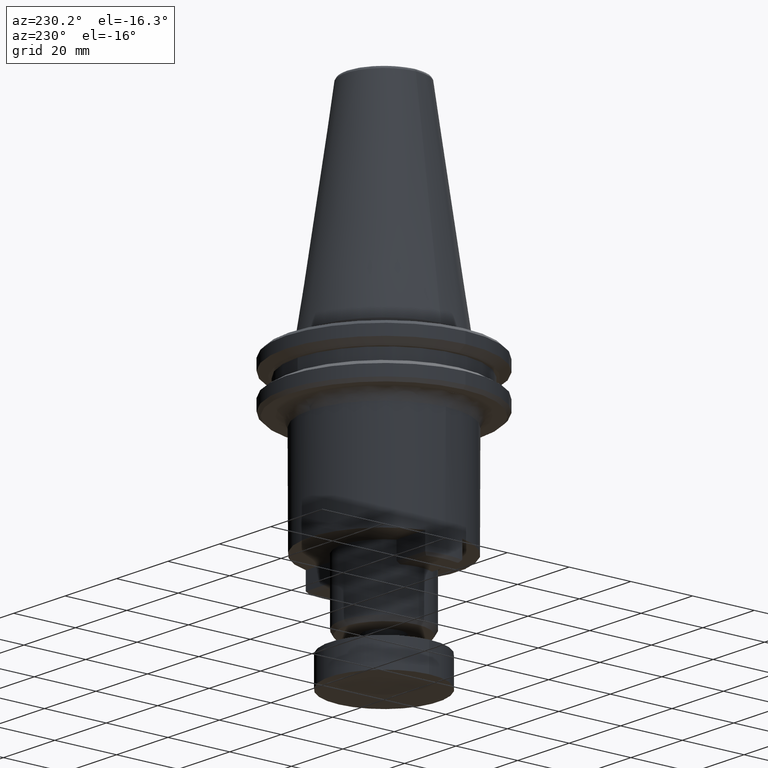
[diagram: clean part render]
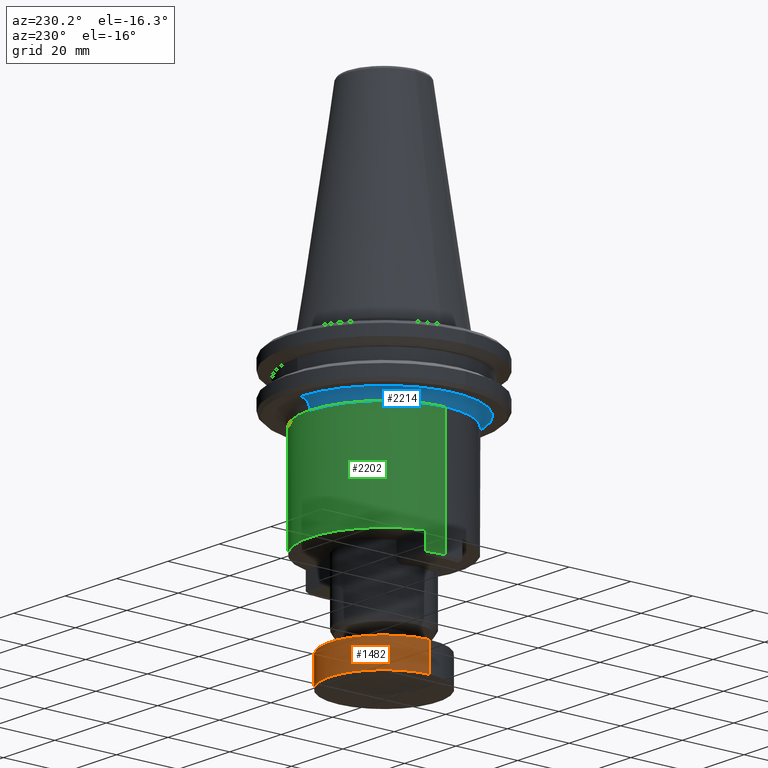
[diagram: same view with three faces highlighted in distinct colors, each labeled with its STEP entity id]
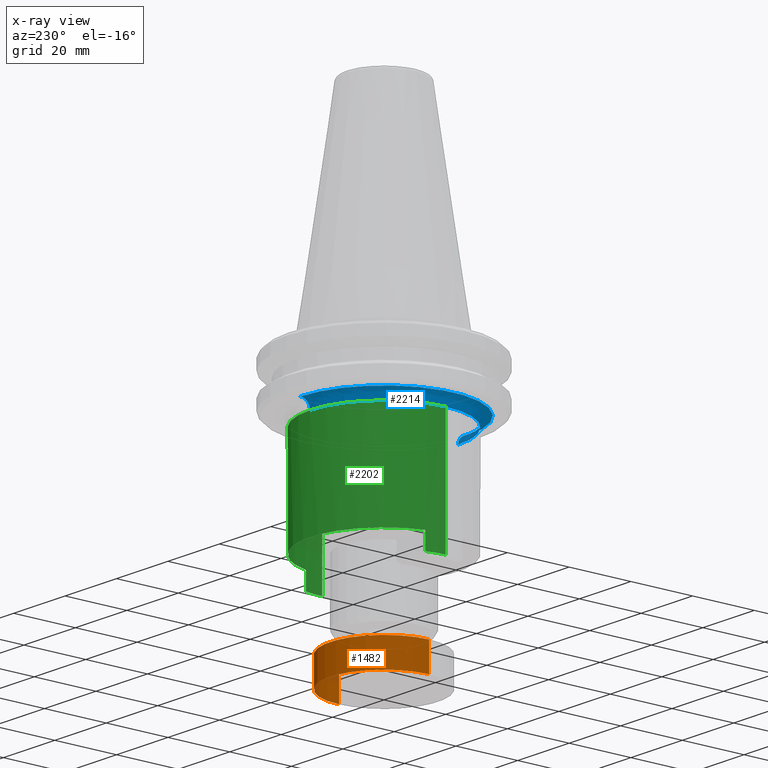
[diagram: x-ray of the same camera — body ghosted, the three highlighted faces saturated]
A machine part, auxiliary view with three faces highlighted in distinct colors.
The next image is the same camera in x-ray (body ghosted, the three faces saturated) — at least one of them is partly hidden behind the body in this view.
Their STEP definitions:

[orange] entity #1482 — the highlighted cylindrical surface (partial cylindrical patch) has radius 17.5 mm, axis along (0, -0, 1).
#55 = AXIS2_PLACEMENT_3D ( 'NONE', #540, #748, #1552 ) ;
#60 = LINE ( 'NONE', #1221, #72 ) ;
#72 = VECTOR ( 'NONE', #2378, 1000.000000000000000 ) ;
#213 = CARTESIAN_POINT ( 'NONE',  ( -17.50000000000000000, 2.143131898507868200E-015, -80.99999999999998600 ) ) ;
#236 = DIRECTION ( 'NONE',  ( -0.0000000000000000000, -0.0000000000000000000, 1.000000000000000000 ) ) ;
#502 = CARTESIAN_POINT ( 'NONE',  ( 17.50000000000000000, 0.0000000000000000000, -80.99999999999998600 ) ) ;
#506 = VERTEX_POINT ( 'NONE', #213 ) ;
#540 = CARTESIAN_POINT ( 'NONE',  ( 0.0000000000000000000, 0.0000000000000000000, -92.00000000000000000 ) ) ;
#543 = EDGE_LOOP ( 'NONE', ( #647, #1954, #1404, #798 ) ) ;
#553 = EDGE_CURVE ( 'NONE', #2429, #800, #60, .T. ) ;
#626 = DIRECTION ( 'NONE',  ( 0.0000000000000000000, -0.0000000000000000000, 1.000000000000000000 ) ) ;
#647 = ORIENTED_EDGE ( 'NONE', *, *, #1059, .T. ) ;
#748 = DIRECTION ( 'NONE',  ( 0.0000000000000000000, -0.0000000000000000000, 1.000000000000000000 ) ) ;
#798 = ORIENTED_EDGE ( 'NONE', *, *, #553, .F. ) ;
#800 = VERTEX_POINT ( 'NONE', #502 ) ;
#834 = CARTESIAN_POINT ( 'NONE',  ( -17.50000000000000000, 2.143131898507868200E-015, -92.00000000000000000 ) ) ;
#965 = LINE ( 'NONE', #834, #1226 ) ;
#1008 = EDGE_CURVE ( 'NONE', #1054, #506, #965, .T. ) ;
#1054 = VERTEX_POINT ( 'NONE', #1237 ) ;
#1059 = EDGE_CURVE ( 'NONE', #2429, #1054, #1786, .T. ) ;
#1087 = AXIS2_PLACEMENT_3D ( 'NONE', #1452, #236, #1655 ) ;
#1123 = DIRECTION ( 'NONE',  ( -0.0000000000000000000, -0.0000000000000000000, 1.000000000000000000 ) ) ;
#1171 = AXIS2_PLACEMENT_3D ( 'NONE', #2228, #1123, #2382 ) ;
#1194 = CARTESIAN_POINT ( 'NONE',  ( 17.50000000000000000, 0.0000000000000000000, -90.00000000000000000 ) ) ;
#1221 = CARTESIAN_POINT ( 'NONE',  ( 17.50000000000000000, 0.0000000000000000000, -92.00000000000000000 ) ) ;
#1226 = VECTOR ( 'NONE', #626, 1000.000000000000000 ) ;
#1237 = CARTESIAN_POINT ( 'NONE',  ( -17.50000000000000000, 2.143131898507868200E-015, -90.00000000000000000 ) ) ;
#1322 = EDGE_CURVE ( 'NONE', #800, #506, #1393, .T. ) ;
#1393 = CIRCLE ( 'NONE', #1171, 17.50000000000000000 ) ;
#1404 = ORIENTED_EDGE ( 'NONE', *, *, #1322, .F. ) ;
#1452 = CARTESIAN_POINT ( 'NONE',  ( 0.0000000000000000000, 0.0000000000000000000, -90.00000000000000000 ) ) ;
#1482 = ADVANCED_FACE ( 'NONE', ( #1524 ), #1535, .T. ) ;
#1524 = FACE_OUTER_BOUND ( 'NONE', #543, .T. ) ;
#1535 = CYLINDRICAL_SURFACE ( 'NONE', #55, 17.50000000000000000 ) ;
#1552 = DIRECTION ( 'NONE',  ( 1.000000000000000000, 0.0000000000000000000, 0.0000000000000000000 ) ) ;
#1655 = DIRECTION ( 'NONE',  ( 1.000000000000000000, 0.0000000000000000000, 0.0000000000000000000 ) ) ;
#1786 = CIRCLE ( 'NONE', #1087, 17.50000000000000000 ) ;
#1954 = ORIENTED_EDGE ( 'NONE', *, *, #1008, .T. ) ;
#2228 = CARTESIAN_POINT ( 'NONE',  ( 0.0000000000000000000, 0.0000000000000000000, -80.99999999999998600 ) ) ;
#2378 = DIRECTION ( 'NONE',  ( 0.0000000000000000000, -0.0000000000000000000, 1.000000000000000000 ) ) ;
#2382 = DIRECTION ( 'NONE',  ( 1.000000000000000000, 0.0000000000000000000, 0.0000000000000000000 ) ) ;
#2429 = VERTEX_POINT ( 'NONE', #1194 ) ;

[blue] entity #2214 — the highlighted face is a freeform B-spline surface patch.
#13 = CARTESIAN_POINT ( 'NONE',  ( 0.0000000000000000000, 25.47174097201115500, -19.54151932953587700 ) ) ;
#29 = CARTESIAN_POINT ( 'NONE',  ( -2.988353811773083100E-015, -24.40176068604997900, -20.63818861464176300 ) ) ;
#37 = CARTESIAN_POINT ( 'NONE',  ( -3.316710141014327000E-015, -27.08299358903781200, -19.10000000006646600 ) ) ;
#41 = CARTESIAN_POINT ( 'NONE',  ( -2.973463182682304800E-015, -24.28016947214940300, -20.87359389177611700 ) ) ;
#46 = CARTESIAN_POINT ( 'NONE',  ( 0.0000000000000000000, 26.74504547859683300, -19.11366538526451500 ) ) ;
#65 = CARTESIAN_POINT ( 'NONE',  ( 0.0000000000000000000, 25.63667532669894200, -19.44847616323465900 ) ) ;
#68 = CARTESIAN_POINT ( 'NONE',  ( -3.033771743178761600E-015, -24.77261645747164200, -20.12326061206603000 ) ) ;
#74 = CARTESIAN_POINT ( 'NONE',  ( 1.160793696044889500E-021, 24.00197083846224900, -22.04263168587630500 ) ) ;
#77 = CARTESIAN_POINT ( 'NONE',  ( 1.210272777833079100E-021, 25.02506002497355200, -19.87103662062297000 ) ) ;
#83 = CARTESIAN_POINT ( 'NONE',  ( -48.09892836191969000, 24.04946418095985200, -21.59674186181025100 ) ) ;
#85 = CARTESIAN_POINT ( 'NONE',  ( -50.47748957326554400, 25.23874478663278300, -19.69770547463807000 ) ) ;
#88 = CARTESIAN_POINT ( 'NONE',  ( -48.34278131121003200, -24.17139065560501600, -21.14121355465885800 ) ) ;
#89 = CARTESIAN_POINT ( 'NONE',  ( -50.94348194402230200, -25.47174097201115100, -19.54151932953587700 ) ) ;
#97 = CARTESIAN_POINT ( 'NONE',  ( -2.980773832590649800E-015, -24.33985584685595100, -20.75177861678397300 ) ) ;
#100 = CARTESIAN_POINT ( 'NONE',  ( -3.157888726445433700E-015, -25.78610813799670300, -19.37312280497416200 ) ) ;
#108 = CARTESIAN_POINT ( 'NONE',  ( 1.189308352323298000E-021, 24.59157427169511900, -20.34665700395282800 ) ) ;
#109 = CARTESIAN_POINT ( 'NONE',  ( 1.293455458342606800E-021, 26.74504547859683300, -19.11366538526451500 ) ) ;
#111 = CARTESIAN_POINT ( 'NONE',  ( 0.0000000000000000000, 27.08299358903781200, -19.10000000006646600 ) ) ;
#114 = CIRCLE ( 'NONE', #1186, 24.00000000006866000 ) ;
#119 = CARTESIAN_POINT ( 'NONE',  ( -54.12267612127281800, 27.06133806063641600, -19.10000264357085300 ) ) ;
#165 = CARTESIAN_POINT ( 'NONE',  ( -24.00000000088071800, 2.939152317825839400E-015, -22.09999999293517800 ) ) ;
#198 = DIRECTION ( 'NONE',  ( 1.000000000000000000, 0.0000000000000000000, 0.0000000000000000000 ) ) ;
#210 = CARTESIAN_POINT ( 'NONE',  ( -3.041082922797647100E-015, -24.83232655256166400, -20.05811846355374000 ) ) ;
#214 = CARTESIAN_POINT ( 'NONE',  ( -3.127930069000175900E-015, -24.00000000006865300, -22.09999999293517800 ) ) ;
#225 = CARTESIAN_POINT ( 'NONE',  ( -2.949360735611140900E-015, -24.08335805609095500, -21.43842917605208600 ) ) ;
#232 = CARTESIAN_POINT ( 'NONE',  ( -3.315999417530180600E-015, -27.07719009137090200, -19.10000000006658600 ) ) ;
#240 = B_SPLINE_CURVE_WITH_KNOTS ( 'NONE', 3,
 ( #214, #443, #545, #337, #431, #225, #325, #421, #438, #41, #2348, #29, #2356, #631, #900, #2338, #2416, #2130, #210, #1635, #1298, #1254, #1405, #1632, #1625, #1494, #1357, #1382, #1280, #1229, #1343, #1616, #1429, #1446, #768, #1537, #1606, #1050, #232, #37 ),
 .UNSPECIFIED., .F., .F.,
 ( 4, 1, 1, 1, 1, 1, 1, 1, 1, 1, 1, 1, 1, 1, 1, 1, 1, 1, 1, 1, 1, 1, 1, 1, 1, 1, 1, 1, 1, 1, 1, 1, 1, 1, 1, 1, 1, 4 ),
 ( 0.0000000000000000000, 0.03374438955145329200, 0.06693056908431628500, 0.09944994850239068100, 0.1311992728670136300, 0.1620816899155294300, 0.1920075900602428700, 0.2208952059969902000, 0.2486709717472370400, 0.2752696522297909400, 0.3006342636236450900, 0.3247158114665391100, 0.3474728775550126000, 0.3688710884380348400, 0.3888824979720096300, 0.4074849144752980500, 0.4248084793631145000, 0.4420409775586069400, 0.4594390162865942300, 0.4769954785646872100, 0.4947028440482579800, 0.5125531996005000500, 0.5305382523576290800, 0.5486493452965089900, 0.5668774752843069900, 0.5852133135606930600, 0.6036472285734011400, 0.6221693110579125100, 0.6407694012223912300, 0.6594371178703631900, 0.7205688351961613300, 0.7765847958806458800, 0.8277640313836427400, 0.8778450782506306300, 0.9013710902939567900, 0.9249266016609246600, 0.9315126077460219600, 0.9359040413169756900 ),
 .UNSPECIFIED. ) ;
#262 = CARTESIAN_POINT ( 'NONE',  ( -49.66465310512332100, 24.83232655256166800, -20.05811846355374000 ) ) ;
#267 = DIRECTION ( 'NONE',  ( -0.0000000000000000000, 0.0000000000000000000, -1.000000000000000000 ) ) ;
#269 = CARTESIAN_POINT ( 'NONE',  ( -48.00394167692448400, -24.00197083846224200, -22.04263168587630500 ) ) ;
#271 = CARTESIAN_POINT ( 'NONE',  ( -50.05012004994709000, -25.02506002497354500, -19.87103662062297000 ) ) ;
#275 = CARTESIAN_POINT ( 'NONE',  ( -2.945211096132729900E-015, -24.04946418095985200, -21.59674186181025100 ) ) ;
#278 = CARTESIAN_POINT ( 'NONE',  ( -3.090856022351770500E-015, -25.23874478663277500, -19.69770547463807000 ) ) ;
#285 = CARTESIAN_POINT ( 'NONE',  ( 1.171516166023421100E-021, 24.22368156330327300, -21.00349263600511300 ) ) ;
#288 = CARTESIAN_POINT ( 'NONE',  ( 1.235820361969528600E-021, 25.55331269512977600, -19.49381769590019800 ) ) ;
#294 = CARTESIAN_POINT ( 'NONE',  ( -8.120552841273109800E-010, 6.421997349185742000E-015, -22.09999999293517800 ) ) ;
#298 = CARTESIAN_POINT ( 'NONE',  ( -48.80352137209994400, 24.40176068604997900, -20.63818861464176300 ) ) ;
#300 = CARTESIAN_POINT ( 'NONE',  ( -51.99848998872984400, 25.99924499436493300, -19.28291303339351600 ) ) ;
#305 = CARTESIAN_POINT ( 'NONE',  ( -49.18314854339022400, -24.59157427169511200, -20.34665700395282800 ) ) ;
#307 = CARTESIAN_POINT ( 'NONE',  ( -53.49009095719363700, -26.74504547859681800, -19.11366538526451500 ) ) ;
#313 = CARTESIAN_POINT ( 'NONE',  ( -3.314059412412420000E-015, -27.06133806063641600, -19.10000264357085000 ) ) ;
#325 = CARTESIAN_POINT ( 'NONE',  ( -2.954373207760629100E-015, -24.12428799730321300, -21.28636679768183600 ) ) ;
#337 = CARTESIAN_POINT ( 'NONE',  ( -2.942051444267424600E-015, -24.02367316287272200, -21.76052119568978000 ) ) ;
#343 = EDGE_CURVE ( 'NONE', #2002, #713, #240, .T. ) ;
#421 = CARTESIAN_POINT ( 'NONE',  ( -2.960141619732693000E-015, -24.17139065560502000, -21.14121355465885400 ) ) ;
#431 = CARTESIAN_POINT ( 'NONE',  ( -2.945209933042140300E-015, -24.04946418095985200, -21.59674186181025100 ) ) ;
#438 = CARTESIAN_POINT ( 'NONE',  ( -2.966545409006410500E-015, -24.22368156330327300, -21.00349263600511300 ) ) ;
#442 = CARTESIAN_POINT ( 'NONE',  ( 0.0000000000000000000, 24.33985584685595100, -20.75177861678397300 ) ) ;
#443 = CARTESIAN_POINT ( 'NONE',  ( -2.939393676055090800E-015, -24.00197083846224900, -22.04263168587630500 ) ) ;
#448 = CARTESIAN_POINT ( 'NONE',  ( -49.30683499531006200, -24.65341749765503100, -20.26544561018402000 ) ) ;
#456 = CARTESIAN_POINT ( 'NONE',  ( 1.160698381505987900E-021, 24.00000000006866300, -22.09999999293517800 ) ) ;
#457 = CARTESIAN_POINT ( 'NONE',  ( -3.041084123749365300E-015, -24.83232655256166400, -20.05811846355374000 ) ) ;
#461 = CARTESIAN_POINT ( 'NONE',  ( 1.160982748406989200E-021, 24.00587991317339100, -21.92884407507331100 ) ) ;
#462 = CARTESIAN_POINT ( 'NONE',  ( 0.0000000000000000000, 25.02506002497355200, -19.87103662062297000 ) ) ;
#465 = CARTESIAN_POINT ( 'NONE',  ( 1.213608173617835400E-021, 25.09402669203353400, -19.81156037020356200 ) ) ;
#472 = CARTESIAN_POINT ( 'NONE',  ( -48.16671611218190200, 24.08335805609095800, -21.43842917605208600 ) ) ;
#473 = EDGE_CURVE ( 'NONE', #866, #1815, #114, .T. ) ;
#474 = CARTESIAN_POINT ( 'NONE',  ( -50.62873171797764400, 25.31436585898883300, -19.64357705878610000 ) ) ;
#480 = CARTESIAN_POINT ( 'NONE',  ( -48.44736312660653300, -24.22368156330326600, -21.00349263600511300 ) ) ;
#483 = CARTESIAN_POINT ( 'NONE',  ( -51.10662539025953800, -25.55331269512976900, -19.49381769590019800 ) ) ;
#490 = CARTESIAN_POINT ( 'NONE',  ( -2.988354991901588300E-015, -24.40176068604997900, -20.63818861464176300 ) ) ;
#493 = CARTESIAN_POINT ( 'NONE',  ( -3.183990473646418600E-015, -25.99924499436493300, -19.28291303339351600 ) ) ;
#505 = CARTESIAN_POINT ( 'NONE',  ( 1.192299241168239100E-021, 24.65341749765504200, -20.26544561018402000 ) ) ;
#508 = CARTESIAN_POINT ( 'NONE',  ( 1.301470007262514100E-021, 26.91076396079954900, -19.10264559005054600 ) ) ;
#521 = CARTESIAN_POINT ( 'NONE',  ( -54.15438018274178900, 27.07719009137090200, -19.10000000006659000 ) ) ;
#545 = CARTESIAN_POINT ( 'NONE',  ( -2.939872399638353600E-015, -24.00587991317339100, -21.92884407507331100 ) ) ;
#556 = CARTESIAN_POINT ( 'NONE',  ( 0.0000000000000000000, 25.09402669203353400, -19.81156037020356200 ) ) ;
#587 = EDGE_CURVE ( 'NONE', #1815, #1900, #2316, .T. ) ;
#594 = CARTESIAN_POINT ( 'NONE',  ( 0.0000000000000000000, 24.02367316287272200, -21.76052119568978000 ) ) ;
#631 = CARTESIAN_POINT ( 'NONE',  ( -3.003873582403825400E-015, -24.52848923048865300, -20.43572703025455100 ) ) ;
#653 = CARTESIAN_POINT ( 'NONE',  ( 0.0000000000000000000, 25.99924499436493300, -19.28291303339351600 ) ) ;
#662 = CARTESIAN_POINT ( 'NONE',  ( 1.195203548431429200E-021, 24.71347045837884700, -20.19164763141174400 ) ) ;
#670 = CARTESIAN_POINT ( 'NONE',  ( -48.00000000000010700, 24.00000000000006400, -22.09999999332666900 ) ) ;
#671 = CARTESIAN_POINT ( 'NONE',  ( 0.0000000000000000000, 24.83232655256166400, -20.05811846355374000 ) ) ;
#675 = CARTESIAN_POINT ( 'NONE',  ( -49.78834237624318600, 24.89417118812159700, -19.99444551538555400 ) ) ;
#680 = CARTESIAN_POINT ( 'NONE',  ( -48.01175982634676800, -24.00587991317338400, -21.92884407507331100 ) ) ;
#682 = CARTESIAN_POINT ( 'NONE',  ( -50.18805338406705400, -25.09402669203352700, -19.81156037020356200 ) ) ;
#688 = CARTESIAN_POINT ( 'NONE',  ( -2.949361900340921100E-015, -24.08335805609095500, -21.43842917605208600 ) ) ;
#690 = CARTESIAN_POINT ( 'NONE',  ( -3.100116936429883100E-015, -25.31436585898883300, -19.64357705878610000 ) ) ;
#693 = CARTESIAN_POINT ( 'NONE',  ( 1.174248058705595000E-021, 24.28016947214940300, -20.87359389177611700 ) ) ;
#694 = CARTESIAN_POINT ( 'NONE',  ( 0.0000000000000000000, 25.39206010465806400, -19.59147629997605100 ) ) ;
#698 = CARTESIAN_POINT ( 'NONE',  ( 1.239851981617034200E-021, 25.63667532669894200, -19.44847616323465900 ) ) ;
#706 = CARTESIAN_POINT ( 'NONE',  ( 0.0000000000000000000, 24.95842714795766100, -19.93204153412120400 ) ) ;
#710 = CARTESIAN_POINT ( 'NONE',  ( -48.92987580976359400, 24.46493790488180400, -20.53285800312222200 ) ) ;
#712 = CARTESIAN_POINT ( 'NONE',  ( -52.54570098585570300, 26.27285049292785900, -19.19750540220530200 ) ) ;
#713 = VERTEX_POINT ( 'NONE', #938 ) ;
#722 = CARTESIAN_POINT ( 'NONE',  ( -53.82152792159908500, -26.91076396079954200, -19.10264559005054300 ) ) ;
#724 = CARTESIAN_POINT ( 'NONE',  ( -3.316000727048960200E-015, -27.07719009137090200, -19.10000000006658600 ) ) ;
#757 = CARTESIAN_POINT ( 'NONE',  ( 0.0000000000000000000, 24.00587991317339100, -21.92884407507331100 ) ) ;
#768 = CARTESIAN_POINT ( 'NONE',  ( -3.275323433841399900E-015, -26.74504547859683300, -19.11366538526451500 ) ) ;
#804 = CARTESIAN_POINT ( 'NONE',  ( 0.0000000000000000000, 0.0000000000000000000, -19.10000000006646600 ) ) ;
#813 = CARTESIAN_POINT ( 'NONE',  ( 0.0000000000000000000, 26.91076396079954900, -19.10264559005054600 ) ) ;
#845 = DIRECTION ( 'NONE',  ( -0.0000000000000000000, -0.0000000000000000000, 1.000000000000000000 ) ) ;
#854 = ORIENTED_EDGE ( 'NONE', *, *, #587, .F. ) ;
#864 = CARTESIAN_POINT ( 'NONE',  ( -49.42694091675767300, -24.71347045837883600, -20.19164763141174000 ) ) ;
#866 = VERTEX_POINT ( 'NONE', #165 ) ;
#869 = CARTESIAN_POINT ( 'NONE',  ( 0.0000000000000000000, 24.17139065560502000, -21.14121355465885400 ) ) ;
#873 = CARTESIAN_POINT ( 'NONE',  ( -3.048657910238612800E-015, -24.89417118812159700, -19.99444551538555400 ) ) ;
#876 = CARTESIAN_POINT ( 'NONE',  ( 1.161843273245642900E-021, 24.02367316287272200, -21.76052119568978000 ) ) ;
#877 = CARTESIAN_POINT ( 'NONE',  ( 1.217053925184672900E-021, 25.16527520837680100, -19.75374117005941300 ) ) ;
#878 = EDGE_CURVE ( 'NONE', #1900, #713, #2175, .T. ) ;
#888 = CARTESIAN_POINT ( 'NONE',  ( -48.24857599460641200, 24.12428799730321700, -21.28636679768183600 ) ) ;
#891 = CARTESIAN_POINT ( 'NONE',  ( -50.78412020931612100, 25.39206010465806800, -19.59147629997605100 ) ) ;
#899 = CARTESIAN_POINT ( 'NONE',  ( -48.56033894429879200, -24.28016947214939600, -20.87359389177611700 ) ) ;
#900 = CARTESIAN_POINT ( 'NONE',  ( -3.011599271782583500E-015, -24.59157427169511900, -20.34665700395282800 ) ) ;
#902 = CARTESIAN_POINT ( 'NONE',  ( -51.27335065339787000, -25.63667532669893500, -19.44847616323465900 ) ) ;
#907 = CARTESIAN_POINT ( 'NONE',  ( -2.996091972839135000E-015, -24.46493790488180400, -20.53285800312221800 ) ) ;
#908 = DIRECTION ( 'NONE',  ( -1.000000000000000000, 0.0000000000000000000, 0.0000000000000000000 ) ) ;
#909 = CARTESIAN_POINT ( 'NONE',  ( -3.217497496683066700E-015, -26.27285049292786200, -19.19750540220530200 ) ) ;
#918 = CARTESIAN_POINT ( 'NONE',  ( 1.305793945571668200E-021, 27.00017092566956500, -19.10003317152119700 ) ) ;
#933 = CARTESIAN_POINT ( 'NONE',  ( -54.16598717807742200, 27.08299358903871500, -19.10000000006647600 ) ) ;
#938 = CARTESIAN_POINT ( 'NONE',  ( -3.316710141014327000E-015, -27.08299358903781200, -19.10000000006646600 ) ) ;
#1034 = CARTESIAN_POINT ( 'NONE',  ( -8.120552841273109800E-010, 6.421997349185742000E-015, -22.09999999293517800 ) ) ;
#1036 = CARTESIAN_POINT ( 'NONE',  ( 0.0000000000000000000, 24.40176068604997900, -20.63818861464176300 ) ) ;
#1039 = CARTESIAN_POINT ( 'NONE',  ( 0.0000000000000000000, 24.22368156330327300, -21.00349263600511300 ) ) ;
#1050 = CARTESIAN_POINT ( 'NONE',  ( -3.314058103660283000E-015, -27.06133806063641600, -19.10000264357085000 ) ) ;
#1065 = CARTESIAN_POINT ( 'NONE',  ( 1.198063992823902900E-021, 24.77261645747164200, -20.12326061206603000 ) ) ;
#1074 = CARTESIAN_POINT ( 'NONE',  ( -49.91685429591530700, 24.95842714795766400, -19.93204153412120400 ) ) ;
#1079 = CARTESIAN_POINT ( 'NONE',  ( 0.0000000000000000000, 25.31436585898883300, -19.64357705878610000 ) ) ;
#1082 = CARTESIAN_POINT ( 'NONE',  ( -48.04734632574543000, -24.02367316287271500, -21.76052119568978000 ) ) ;
#1083 = CARTESIAN_POINT ( 'NONE',  ( -50.33055041675359600, -25.16527520837679800, -19.75374117005941000 ) ) ;
#1089 = CARTESIAN_POINT ( 'NONE',  ( -2.954374374469880300E-015, -24.12428799730321300, -21.28636679768183600 ) ) ;
#1091 = CARTESIAN_POINT ( 'NONE',  ( -3.109631741114465300E-015, -25.39206010465806400, -19.59147629997605100 ) ) ;
#1095 = CARTESIAN_POINT ( 'NONE',  ( 1.177134636977247100E-021, 24.33985584685595100, -20.75177861678397300 ) ) ;
#1096 = CARTESIAN_POINT ( 'NONE',  ( 1.247078915876063600E-021, 25.78610813799670300, -19.37312280497416200 ) ) ;
#1106 = CARTESIAN_POINT ( 'NONE',  ( -49.05697846097729800, 24.52848923048865300, -20.43572703025455100 ) ) ;
#1109 = CARTESIAN_POINT ( 'NONE',  ( -53.06945992364863700, 26.53472996182432900, -19.14089934896980000 ) ) ;
#1119 = CARTESIAN_POINT ( 'NONE',  ( -54.00034185133911500, -27.00017092566955800, -19.10003317152119700 ) ) ;
#1126 = CARTESIAN_POINT ( 'NONE',  ( -3.316711450813906000E-015, -27.08299358903871800, -19.10000000006647600 ) ) ;
#1148 = ORIENTED_EDGE ( 'NONE', *, *, #343, .T. ) ;
#1177 = FACE_OUTER_BOUND ( 'NONE', #2083, .T. ) ;
#1186 = AXIS2_PLACEMENT_3D ( 'NONE', #294, #267, #908 ) ;
#1223 = DIRECTION ( 'NONE',  ( -1.000000000000000000, 0.0000000000000000000, 0.0000000000000000000 ) ) ;
#1229 = CARTESIAN_POINT ( 'NONE',  ( -3.139587237962178500E-015, -25.63667532669894200, -19.44847616323465900 ) ) ;
#1254 = CARTESIAN_POINT ( 'NONE',  ( -3.064685965805424700E-015, -25.02506002497355200, -19.87103662062297000 ) ) ;
#1268 = CARTESIAN_POINT ( 'NONE',  ( -49.54523291494327000, -24.77261645747163500, -20.12326061206603000 ) ) ;
#1273 = CARTESIAN_POINT ( 'NONE',  ( 0.0000000000000000000, 24.04946418095985200, -21.59674186181025100 ) ) ;
#1275 = CARTESIAN_POINT ( 'NONE',  ( -2.939153478652036500E-015, -24.00000000000006000, -22.09999999332666900 ) ) ;
#1277 = CARTESIAN_POINT ( 'NONE',  ( -3.056526998900124900E-015, -24.95842714795766100, -19.93204153412120400 ) ) ;
#1279 = CARTESIAN_POINT ( 'NONE',  ( 1.163090589618602600E-021, 24.04946418095985200, -21.59674186181025100 ) ) ;
#1280 = CARTESIAN_POINT ( 'NONE',  ( -3.129378259970210100E-015, -25.55331269512977600, -19.49381769590019800 ) ) ;
#1282 = CARTESIAN_POINT ( 'NONE',  ( 1.220607092708480800E-021, 25.23874478663277500, -19.69770547463807000 ) ) ;
#1287 = CARTESIAN_POINT ( 'NONE',  ( -48.34278131121003200, 24.17139065560502300, -21.14121355465885800 ) ) ;
#1290 = CARTESIAN_POINT ( 'NONE',  ( -50.94348194402230200, 25.47174097201115800, -19.54151932953587700 ) ) ;
#1297 = CARTESIAN_POINT ( 'NONE',  ( -48.67971169371188700, -24.33985584685594400, -20.75177861678397300 ) ) ;
#1298 = CARTESIAN_POINT ( 'NONE',  ( -3.056525791849875200E-015, -24.95842714795766100, -19.93204153412120400 ) ) ;
#1299 = CARTESIAN_POINT ( 'NONE',  ( -51.57221627599339100, -25.78610813799669500, -19.37312280497416200 ) ) ;
#1309 = CARTESIAN_POINT ( 'NONE',  ( -3.003874768661231600E-015, -24.52848923048865300, -20.43572703025455100 ) ) ;
#1310 = CARTESIAN_POINT ( 'NONE',  ( -3.249568494682841600E-015, -26.53472996182432900, -19.14089934896980000 ) ) ;
#1317 = CARTESIAN_POINT ( 'NONE',  ( 1.308752137011550400E-021, 27.06133806063641600, -19.10000264357085000 ) ) ;
#1343 = CARTESIAN_POINT ( 'NONE',  ( -3.157887479366518100E-015, -25.78610813799670300, -19.37312280497416200 ) ) ;
#1357 = CARTESIAN_POINT ( 'NONE',  ( -3.109630513092670700E-015, -25.39206010465806400, -19.59147629997605100 ) ) ;
#1378 = CARTESIAN_POINT ( 'NONE',  ( 0.0000000000000000000, 27.06133806063641600, -19.10000264357085000 ) ) ;
#1382 = CARTESIAN_POINT ( 'NONE',  ( -3.119388605008394900E-015, -25.47174097201115500, -19.54151932953587700 ) ) ;
#1405 = CARTESIAN_POINT ( 'NONE',  ( -3.073131946611711000E-015, -25.09402669203353400, -19.81156037020356200 ) ) ;
#1416 = CARTESIAN_POINT ( 'NONE',  ( 0.0000000000000000000, 24.12428799730321300, -21.28636679768183600 ) ) ;
#1429 = CARTESIAN_POINT ( 'NONE',  ( -3.217496226064106500E-015, -26.27285049292786200, -19.19750540220530200 ) ) ;
#1446 = CARTESIAN_POINT ( 'NONE',  ( -3.249567211398753500E-015, -26.53472996182432900, -19.14089934896980000 ) ) ;
#1460 = CARTESIAN_POINT ( 'NONE',  ( 0.0000000000000000000, 24.00197083846224900, -22.04263168587630500 ) ) ;
#1463 = ORIENTED_EDGE ( 'NONE', *, *, #473, .F. ) ;
#1478 = CARTESIAN_POINT ( 'NONE',  ( 1.200951718271001100E-021, 24.83232655256166400, -20.05811846355374000 ) ) ;
#1483 = CARTESIAN_POINT ( 'NONE',  ( -48.00394167692448400, 24.00197083846225300, -22.04263168587630500 ) ) ;
#1485 = CARTESIAN_POINT ( 'NONE',  ( -50.05012004994709000, 25.02506002497355600, -19.87103662062297000 ) ) ;
#1490 = CARTESIAN_POINT ( 'NONE',  ( -48.09892836191969000, -24.04946418095984500, -21.59674186181025100 ) ) ;
#1491 = CARTESIAN_POINT ( 'NONE',  ( 0.0000000000000000000, 24.08335805609095500, -21.43842917605208600 ) ) ;
#1494 = CARTESIAN_POINT ( 'NONE',  ( -3.100115712165571400E-015, -25.31436585898883300, -19.64357705878610000 ) ) ;
#1495 = CARTESIAN_POINT ( 'NONE',  ( -50.47748957326554400, -25.23874478663277200, -19.69770547463807000 ) ) ;
#1502 = CARTESIAN_POINT ( 'NONE',  ( 0.0000000000000000000, 27.00017092566956500, -19.10003317152119700 ) ) ;
#1505 = CARTESIAN_POINT ( 'NONE',  ( -2.960142788719943300E-015, -24.17139065560502000, -21.14121355465885400 ) ) ;
#1508 = CARTESIAN_POINT ( 'NONE',  ( -3.119389836883750200E-015, -25.47174097201115500, -19.54151932953587700 ) ) ;
#1513 = CARTESIAN_POINT ( 'NONE',  ( 1.180128505588067400E-021, 24.40176068604997900, -20.63818861464176300 ) ) ;
#1514 = CARTESIAN_POINT ( 'NONE',  ( 1.257386732718779000E-021, 25.99924499436493300, -19.28291303339351600 ) ) ;
#1523 = CARTESIAN_POINT ( 'NONE',  ( -49.18314854339022400, 24.59157427169512300, -20.34665700395282800 ) ) ;
#1526 = CARTESIAN_POINT ( 'NONE',  ( -53.49009095719363700, 26.74504547859682900, -19.11366538526451500 ) ) ;
#1537 = CARTESIAN_POINT ( 'NONE',  ( -3.295618094720311800E-015, -26.91076396079954900, -19.10264559005054600 ) ) ;
#1538 = CARTESIAN_POINT ( 'NONE',  ( -54.12267612127281800, -27.06133806063640900, -19.10000264357085300 ) ) ;
#1567 = CARTESIAN_POINT ( 'NONE',  ( 0.0000000000000000000, 24.77261645747164200, -20.12326061206603000 ) ) ;
#1588 = CIRCLE ( 'NONE', #2335, 24.00000000006866000 ) ;
#1606 = CARTESIAN_POINT ( 'NONE',  ( -3.306567290055266500E-015, -27.00017092566956500, -19.10003317152119700 ) ) ;
#1616 = CARTESIAN_POINT ( 'NONE',  ( -3.183989216259686300E-015, -25.99924499436493300, -19.28291303339351600 ) ) ;
#1625 = CARTESIAN_POINT ( 'NONE',  ( -3.090854801744678000E-015, -25.23874478663277500, -19.69770547463807000 ) ) ;
#1632 = CARTESIAN_POINT ( 'NONE',  ( -3.081857373360089600E-015, -25.16527520837680100, -19.75374117005941300 ) ) ;
#1635 = CARTESIAN_POINT ( 'NONE',  ( -3.048656706295937900E-015, -24.89417118812159700, -19.99444551538555400 ) ) ;
#1670 = CARTESIAN_POINT ( 'NONE',  ( -49.66465310512332100, -24.83232655256166100, -20.05811846355374000 ) ) ;
#1680 = CARTESIAN_POINT ( 'NONE',  ( -2.939394836848786800E-015, -24.00197083846224900, -22.04263168587630500 ) ) ;
#1681 = CARTESIAN_POINT ( 'NONE',  ( -3.064687176078202300E-015, -25.02506002497355200, -19.87103662062297000 ) ) ;
#1687 = CARTESIAN_POINT ( 'NONE',  ( 1.164729779868916200E-021, 24.08335805609095500, -21.43842917605208600 ) ) ;
#1688 = CARTESIAN_POINT ( 'NONE',  ( 1.224264311720613100E-021, 25.31436585898883300, -19.64357705878610000 ) ) ;
#1692 = CARTESIAN_POINT ( 'NONE',  ( -48.44736312660653300, 24.22368156330327300, -21.00349263600511300 ) ) ;
#1693 = CARTESIAN_POINT ( 'NONE',  ( -51.10662539025953800, 25.55331269512978000, -19.49381769590019800 ) ) ;
#1704 = CARTESIAN_POINT ( 'NONE',  ( -48.80352137209994400, -24.40176068604997200, -20.63818861464176300 ) ) ;
#1707 = CARTESIAN_POINT ( 'NONE',  ( -51.99848998872984400, -25.99924499436492200, -19.28291303339351600 ) ) ;
#1714 = EDGE_CURVE ( 'NONE', #2002, #866, #1588, .T. ) ;
#1716 = CARTESIAN_POINT ( 'NONE',  ( -3.011600461090935600E-015, -24.59157427169511900, -20.34665700395282800 ) ) ;
#1718 = CARTESIAN_POINT ( 'NONE',  ( -3.275324727296858500E-015, -26.74504547859683300, -19.11366538526451500 ) ) ;
#1722 = CARTESIAN_POINT ( 'NONE',  ( 1.309518779778927600E-021, 27.07719009137090200, -19.10000000006658600 ) ) ;
#1730 = CARTESIAN_POINT ( 'NONE',  ( -3.127930069000175900E-015, -24.00000000006865300, -22.09999999293517800 ) ) ;
#1735 = ORIENTED_EDGE ( 'NONE', *, *, #1714, .F. ) ;
#1780 =( BOUNDED_SURFACE ( )  B_SPLINE_SURFACE ( 3, 3, ( 
 ( #2186, #670, #2343, #1275 ),
 ( #74, #1483, #269, #1680 ),
 ( #461, #1855, #680, #2024 ),
 ( #876, #2196, #1082, #2345 ),
 ( #1279, #83, #1490, #275 ),
 ( #1687, #472, #1862, #688 ),
 ( #2029, #888, #2203, #1089 ),
 ( #2355, #1287, #88, #1505 ),
 ( #285, #1692, #480, #1873 ),
 ( #693, #2035, #899, #2211 ),
 ( #1095, #2364, #1297, #97 ),
 ( #1513, #298, #1704, #490 ),
 ( #1879, #710, #2042, #907 ),
 ( #2220, #1106, #2368, #1309 ),
 ( #108, #1523, #305, #1716 ),
 ( #505, #1887, #448, #1848 ),
 ( #662, #2012, #864, #2182 ),
 ( #1065, #2340, #1268, #68 ),
 ( #1478, #262, #1670, #457 ),
 ( #1853, #675, #2017, #873 ),
 ( #2188, #1074, #2344, #1277 ),
 ( #77, #1485, #271, #1681 ),
 ( #465, #1857, #682, #2025 ),
 ( #877, #2198, #1083, #2349 ),
 ( #1282, #85, #1495, #278 ),
 ( #1688, #474, #1865, #690 ),
 ( #2030, #891, #2204, #1091 ),
 ( #2357, #1290, #89, #1508 ),
 ( #288, #1693, #483, #1875 ),
 ( #698, #2036, #902, #2213 ),
 ( #1096, #2365, #1299, #100 ),
 ( #1514, #300, #1707, #493 ),
 ( #1880, #712, #2045, #909 ),
 ( #2221, #1109, #2371, #1310 ),
 ( #109, #1526, #307, #1718 ),
 ( #508, #1888, #722, #2053 ),
 ( #918, #2226, #1119, #2381 ),
 ( #1317, #119, #1538, #313 ),
 ( #1722, #521, #1898, #724 ),
 ( #2061, #933, #2233, #1126 ) ),
 .UNSPECIFIED., .F., .F., .F. ) 
 B_SPLINE_SURFACE_WITH_KNOTS ( ( 4, 1, 1, 1, 1, 1, 1, 1, 1, 1, 1, 1, 1, 1, 1, 1, 1, 1, 1, 1, 1, 1, 1, 1, 1, 1, 1, 1, 1, 1, 1, 1, 1, 1, 1, 1, 1, 4 ),
 ( 4, 4 ),
 ( 0.0000000000000000000, 0.03374438955145329200, 0.06693056908431628500, 0.09944994850239068100, 0.1311992728670136300, 0.1620816899155294300, 0.1920075900602428700, 0.2208952059969902000, 0.2486709717472370400, 0.2752696522297909400, 0.3006342636236450900, 0.3247158114665391100, 0.3474728775550126000, 0.3688710884380348400, 0.3888824979720096300, 0.4074849144752980500, 0.4248084793631145600, 0.4420409775586069400, 0.4594390162865942300, 0.4769954785646872100, 0.4947028440482579800, 0.5125531996005000500, 0.5305382523576290800, 0.5486493452965091100, 0.5668774752843069900, 0.5852133135606930600, 0.6036472285734011400, 0.6221693110579125100, 0.6407694012223912300, 0.6594371178703631900, 0.7205688351961613300, 0.7765847958806458800, 0.8277640313836427400, 0.8778450782506306300, 0.9013710902939567900, 0.9249266016609246600, 0.9315126077460219600, 0.9359040413169756900 ),
 ( 0.0000000000000000000, 1.000000000000000000 ),
 .UNSPECIFIED. ) 
 GEOMETRIC_REPRESENTATION_ITEM ( )  RATIONAL_B_SPLINE_SURFACE ( (
 ( 1.000000000000000000, 0.3333333333333334300, 0.3333333333333334300, 1.000000000000000000),
 ( 1.000000000000000000, 0.3333333333333334300, 0.3333333333333334300, 1.000000000000000000),
 ( 1.000000000000000000, 0.3333333333333334300, 0.3333333333333334300, 1.000000000000000000),
 ( 1.000000000000000000, 0.3333333333333334300, 0.3333333333333334300, 1.000000000000000000),
 ( 1.000000000000000000, 0.3333333333333334300, 0.3333333333333334300, 1.000000000000000000),
 ( 1.000000000000000000, 0.3333333333333334300, 0.3333333333333334300, 1.000000000000000000),
 ( 1.000000000000000000, 0.3333333333333334300, 0.3333333333333334300, 1.000000000000000000),
 ( 1.000000000000000000, 0.3333333333333334300, 0.3333333333333334300, 1.000000000000000000),
 ( 1.000000000000000000, 0.3333333333333334300, 0.3333333333333334300, 1.000000000000000000),
 ( 1.000000000000000000, 0.3333333333333334300, 0.3333333333333334300, 1.000000000000000000),
 ( 1.000000000000000000, 0.3333333333333334300, 0.3333333333333334300, 1.000000000000000000),
 ( 1.000000000000000000, 0.3333333333333334300, 0.3333333333333334300, 1.000000000000000000),
 ( 1.000000000000000000, 0.3333333333333334300, 0.3333333333333334300, 1.000000000000000000),
 ( 1.000000000000000000, 0.3333333333333334300, 0.3333333333333334300, 1.000000000000000000),
 ( 1.000000000000000000, 0.3333333333333334300, 0.3333333333333334300, 1.000000000000000000),
 ( 1.000000000000000000, 0.3333333333333334300, 0.3333333333333334300, 1.000000000000000000),
 ( 1.000000000000000000, 0.3333333333333334300, 0.3333333333333334300, 1.000000000000000000),
 ( 1.000000000000000000, 0.3333333333333334300, 0.3333333333333334300, 1.000000000000000000),
 ( 1.000000000000000000, 0.3333333333333334300, 0.3333333333333334300, 1.000000000000000000),
 ( 1.000000000000000000, 0.3333333333333334300, 0.3333333333333334300, 1.000000000000000000),
 ( 1.000000000000000000, 0.3333333333333334300, 0.3333333333333334300, 1.000000000000000000),
 ( 1.000000000000000000, 0.3333333333333334300, 0.3333333333333334300, 1.000000000000000000),
 ( 1.000000000000000000, 0.3333333333333334300, 0.3333333333333334300, 1.000000000000000000),
 ( 1.000000000000000000, 0.3333333333333334300, 0.3333333333333334300, 1.000000000000000000),
 ( 1.000000000000000000, 0.3333333333333334300, 0.3333333333333334300, 1.000000000000000000),
 ( 1.000000000000000000, 0.3333333333333334300, 0.3333333333333334300, 1.000000000000000000),
 ( 1.000000000000000000, 0.3333333333333334300, 0.3333333333333334300, 1.000000000000000000),
 ( 1.000000000000000000, 0.3333333333333334300, 0.3333333333333334300, 1.000000000000000000),
 ( 1.000000000000000000, 0.3333333333333334300, 0.3333333333333334300, 1.000000000000000000),
 ( 1.000000000000000000, 0.3333333333333334300, 0.3333333333333334300, 1.000000000000000000),
 ( 1.000000000000000000, 0.3333333333333334300, 0.3333333333333334300, 1.000000000000000000),
 ( 1.000000000000000000, 0.3333333333333334300, 0.3333333333333334300, 1.000000000000000000),
 ( 1.000000000000000000, 0.3333333333333334300, 0.3333333333333334300, 1.000000000000000000),
 ( 1.000000000000000000, 0.3333333333333334300, 0.3333333333333334300, 1.000000000000000000),
 ( 1.000000000000000000, 0.3333333333333334300, 0.3333333333333334300, 1.000000000000000000),
 ( 1.000000000000000000, 0.3333333333333334300, 0.3333333333333334300, 1.000000000000000000),
 ( 1.000000000000000000, 0.3333333333333334300, 0.3333333333333334300, 1.000000000000000000),
 ( 1.000000000000000000, 0.3333333333333334300, 0.3333333333333334300, 1.000000000000000000),
 ( 1.000000000000000000, 0.3333333333333334300, 0.3333333333333334300, 1.000000000000000000),
 ( 1.000000000000000000, 0.3333333333333334300, 0.3333333333333334300, 1.000000000000000000) ) ) 
 REPRESENTATION_ITEM ( '' )  SURFACE ( )  );
#1781 = CARTESIAN_POINT ( 'NONE',  ( 0.0000000000000000000, 25.55331269512977600, -19.49381769590019800 ) ) ;
#1794 = CARTESIAN_POINT ( 'NONE',  ( 0.0000000000000000000, 25.16527520837680100, -19.75374117005941300 ) ) ;
#1803 = AXIS2_PLACEMENT_3D ( 'NONE', #804, #845, #198 ) ;
#1805 = CARTESIAN_POINT ( 'NONE',  ( 0.0000000000000000000, 24.28016947214940300, -20.87359389177611700 ) ) ;
#1815 = VERTEX_POINT ( 'NONE', #1988 ) ;
#1826 = CARTESIAN_POINT ( 'NONE',  ( 0.0000000000000000000, 24.52848923048865300, -20.43572703025455100 ) ) ;
#1837 = CARTESIAN_POINT ( 'NONE',  ( 0.0000000000000000000, 24.71347045837884700, -20.19164763141174400 ) ) ;
#1848 = CARTESIAN_POINT ( 'NONE',  ( -3.019174074953901100E-015, -24.65341749765504200, -20.26544561018402000 ) ) ;
#1853 = CARTESIAN_POINT ( 'NONE',  ( 1.203942675287627800E-021, 24.89417118812159700, -19.99444551538555400 ) ) ;
#1855 = CARTESIAN_POINT ( 'NONE',  ( -48.01175982634676800, 24.00587991317339100, -21.92884407507331100 ) ) ;
#1856 = CARTESIAN_POINT ( 'NONE',  ( 0.0000000000000000000, 25.23874478663277500, -19.69770547463807000 ) ) ;
#1857 = CARTESIAN_POINT ( 'NONE',  ( -50.18805338406705400, 25.09402669203353000, -19.81156037020356200 ) ) ;
#1862 = CARTESIAN_POINT ( 'NONE',  ( -48.16671611218190200, -24.08335805609095100, -21.43842917605208600 ) ) ;
#1865 = CARTESIAN_POINT ( 'NONE',  ( -50.62873171797764400, -25.31436585898882200, -19.64357705878610000 ) ) ;
#1873 = CARTESIAN_POINT ( 'NONE',  ( -2.966546580522576400E-015, -24.22368156330327300, -21.00349263600511300 ) ) ;
#1875 = CARTESIAN_POINT ( 'NONE',  ( -3.129379495790572400E-015, -25.55331269512977600, -19.49381769590019800 ) ) ;
#1879 = CARTESIAN_POINT ( 'NONE',  ( 1.183183909573315100E-021, 24.46493790488180400, -20.53285800312221800 ) ) ;
#1880 = CARTESIAN_POINT ( 'NONE',  ( 1.270618960191788200E-021, 26.27285049292786200, -19.19750540220530200 ) ) ;
#1885 = CARTESIAN_POINT ( 'NONE',  ( 0.0000000000000000000, 24.89417118812159700, -19.99444551538555400 ) ) ;
#1887 = CARTESIAN_POINT ( 'NONE',  ( -49.30683499531006200, 24.65341749765504200, -20.26544561018402000 ) ) ;
#1888 = CARTESIAN_POINT ( 'NONE',  ( -53.82152792159908500, 26.91076396079954900, -19.10264559005054300 ) ) ;
#1898 = CARTESIAN_POINT ( 'NONE',  ( -54.15438018274178900, -27.07719009137089500, -19.10000000006659000 ) ) ;
#1900 = VERTEX_POINT ( 'NONE', #111 ) ;
#1950 = CARTESIAN_POINT ( 'NONE',  ( 0.0000000000000000000, 26.53472996182432900, -19.14089934896980000 ) ) ;
#1978 = CARTESIAN_POINT ( 'NONE',  ( 0.0000000000000000000, 24.59157427169511900, -20.34665700395282800 ) ) ;
#1988 = CARTESIAN_POINT ( 'NONE',  ( 1.160698381505987900E-021, 24.00000000006866300, -22.09999999293517800 ) ) ;
#1996 = CARTESIAN_POINT ( 'NONE',  ( 0.0000000000000000000, 24.46493790488180400, -20.53285800312221800 ) ) ;
#2002 = VERTEX_POINT ( 'NONE', #1730 ) ;
#2012 = CARTESIAN_POINT ( 'NONE',  ( -49.42694091675767300, 24.71347045837884700, -20.19164763141174000 ) ) ;
#2017 = CARTESIAN_POINT ( 'NONE',  ( -49.78834237624318600, -24.89417118812159300, -19.99444551538555400 ) ) ;
#2024 = CARTESIAN_POINT ( 'NONE',  ( -2.939873560621102100E-015, -24.00587991317339100, -21.92884407507331100 ) ) ;
#2025 = CARTESIAN_POINT ( 'NONE',  ( -3.073133160219884500E-015, -25.09402669203353400, -19.81156037020356200 ) ) ;
#2029 = CARTESIAN_POINT ( 'NONE',  ( 1.166709251390585800E-021, 24.12428799730321300, -21.28636679768183600 ) ) ;
#2030 = CARTESIAN_POINT ( 'NONE',  ( 1.228021794437294000E-021, 25.39206010465806400, -19.59147629997605100 ) ) ;
#2035 = CARTESIAN_POINT ( 'NONE',  ( -48.56033894429879200, 24.28016947214940300, -20.87359389177611700 ) ) ;
#2036 = CARTESIAN_POINT ( 'NONE',  ( -51.27335065339787000, 25.63667532669893800, -19.44847616323465900 ) ) ;
#2039 = CARTESIAN_POINT ( 'NONE',  ( 0.0000000000000000000, 27.08299358903781200, -19.10000000006646600 ) ) ;
#2042 = CARTESIAN_POINT ( 'NONE',  ( -48.92987580976359400, -24.46493790488179700, -20.53285800312222200 ) ) ;
#2045 = CARTESIAN_POINT ( 'NONE',  ( -52.54570098585570300, -26.27285049292785100, -19.19750540220530200 ) ) ;
#2053 = CARTESIAN_POINT ( 'NONE',  ( -3.295619396190318700E-015, -26.91076396079954900, -19.10264559005054600 ) ) ;
#2060 = ORIENTED_EDGE ( 'NONE', *, *, #878, .F. ) ;
#2061 = CARTESIAN_POINT ( 'NONE',  ( 1.309799451043514500E-021, 27.08299358903871800, -19.10000000006647600 ) ) ;
#2083 = EDGE_LOOP ( 'NONE', ( #1735, #1148, #2060, #854, #1463 ) ) ;
#2098 = CARTESIAN_POINT ( 'NONE',  ( 0.0000000000000000000, 25.78610813799670300, -19.37312280497416200 ) ) ;
#2130 = CARTESIAN_POINT ( 'NONE',  ( -3.033770545114768900E-015, -24.77261645747164200, -20.12326061206603000 ) ) ;
#2150 = CARTESIAN_POINT ( 'NONE',  ( 0.0000000000000000000, 24.65341749765504200, -20.26544561018402000 ) ) ;
#2173 = CARTESIAN_POINT ( 'NONE',  ( 0.0000000000000000000, 27.07719009137090200, -19.10000000006658600 ) ) ;
#2175 = CIRCLE ( 'NONE', #1803, 27.08299358903781200 ) ;
#2182 = CARTESIAN_POINT ( 'NONE',  ( -3.026528444471181000E-015, -24.71347045837884700, -20.19164763141174400 ) ) ;
#2186 = CARTESIAN_POINT ( 'NONE',  ( 1.160698381502669800E-021, 24.00000000000006000, -22.09999999332666900 ) ) ;
#2188 = CARTESIAN_POINT ( 'NONE',  ( 1.207050249811945100E-021, 24.95842714795766100, -19.93204153412120400 ) ) ;
#2196 = CARTESIAN_POINT ( 'NONE',  ( -48.04734632574543000, 24.02367316287272600, -21.76052119568978000 ) ) ;
#2198 = CARTESIAN_POINT ( 'NONE',  ( -50.33055041675359600, 25.16527520837680100, -19.75374117005941000 ) ) ;
#2203 = CARTESIAN_POINT ( 'NONE',  ( -48.24857599460641200, -24.12428799730320600, -21.28636679768183600 ) ) ;
#2204 = CARTESIAN_POINT ( 'NONE',  ( -50.78412020931612100, -25.39206010465806100, -19.59147629997605100 ) ) ;
#2211 = CARTESIAN_POINT ( 'NONE',  ( -2.973464356930363500E-015, -24.28016947214940300, -20.87359389177611700 ) ) ;
#2213 = CARTESIAN_POINT ( 'NONE',  ( -3.139588477814160400E-015, -25.63667532669894200, -19.44847616323465900 ) ) ;
#2214 = ADVANCED_FACE ( 'NONE', ( #1177 ), #1780, .F. ) ;
#2220 = CARTESIAN_POINT ( 'NONE',  ( 1.186257406272240900E-021, 24.52848923048865300, -20.43572703025455100 ) ) ;
#2221 = CARTESIAN_POINT ( 'NONE',  ( 1.283284088345826000E-021, 26.53472996182432900, -19.14089934896980000 ) ) ;
#2226 = CARTESIAN_POINT ( 'NONE',  ( -54.00034185133911500, 27.00017092566956800, -19.10003317152119700 ) ) ;
#2233 = CARTESIAN_POINT ( 'NONE',  ( -54.16598717807742200, -27.08299358903871100, -19.10000000006647600 ) ) ;
#2307 = DIRECTION ( 'NONE',  ( -0.0000000000000000000, 0.0000000000000000000, -1.000000000000000000 ) ) ;
#2316 = B_SPLINE_CURVE_WITH_KNOTS ( 'NONE', 3,
 ( #456, #1460, #757, #594, #1273, #1491, #1416, #869, #1039, #1805, #442, #1036, #1996, #1826, #1978, #2150, #1837, #1567, #671, #1885, #706, #462, #556, #1794, #1856, #1079, #694, #13, #1781, #65, #2098, #653, #2389, #1950, #46, #813, #1502, #1378, #2173, #2039 ),
 .UNSPECIFIED., .F., .F.,
 ( 4, 1, 1, 1, 1, 1, 1, 1, 1, 1, 1, 1, 1, 1, 1, 1, 1, 1, 1, 1, 1, 1, 1, 1, 1, 1, 1, 1, 1, 1, 1, 1, 1, 1, 1, 1, 1, 4 ),
 ( 0.0000000000000000000, 0.03374438955145329200, 0.06693056908431628500, 0.09944994850239068100, 0.1311992728670136300, 0.1620816899155294300, 0.1920075900602428700, 0.2208952059969902000, 0.2486709717472370400, 0.2752696522297909400, 0.3006342636236450900, 0.3247158114665391100, 0.3474728775550126000, 0.3688710884380348400, 0.3888824979720096300, 0.4074849144752980500, 0.4248084793631145000, 0.4420409775586069400, 0.4594390162865942300, 0.4769954785646872100, 0.4947028440482579800, 0.5125531996005000500, 0.5305382523576290800, 0.5486493452965089900, 0.5668774752843069900, 0.5852133135606930600, 0.6036472285734011400, 0.6221693110579125100, 0.6407694012223912300, 0.6594371178703631900, 0.7205688351961613300, 0.7765847958806458800, 0.8277640313836427400, 0.8778450782506306300, 0.9013710902939567900, 0.9249266016609246600, 0.9315126077460219600, 0.9359040413169756900 ),
 .UNSPECIFIED. ) ;
#2335 = AXIS2_PLACEMENT_3D ( 'NONE', #1034, #2307, #1223 ) ;
#2338 = CARTESIAN_POINT ( 'NONE',  ( -3.019172882654659700E-015, -24.65341749765504200, -20.26544561018402000 ) ) ;
#2340 = CARTESIAN_POINT ( 'NONE',  ( -49.54523291494327000, 24.77261645747163900, -20.12326061206603000 ) ) ;
#2343 = CARTESIAN_POINT ( 'NONE',  ( -48.00000000000010700, -24.00000000000005300, -22.09999999332666900 ) ) ;
#2344 = CARTESIAN_POINT ( 'NONE',  ( -49.91685429591530700, -24.95842714795765400, -19.93204153412120400 ) ) ;
#2345 = CARTESIAN_POINT ( 'NONE',  ( -2.942052606110698100E-015, -24.02367316287272200, -21.76052119568978000 ) ) ;
#2348 = CARTESIAN_POINT ( 'NONE',  ( -2.980772655456012900E-015, -24.33985584685595100, -20.75177861678397300 ) ) ;
#2349 = CARTESIAN_POINT ( 'NONE',  ( -3.081858590414014500E-015, -25.16527520837680100, -19.75374117005941300 ) ) ;
#2355 = CARTESIAN_POINT ( 'NONE',  ( 1.168987250526226600E-021, 24.17139065560502000, -21.14121355465885400 ) ) ;
#2356 = CARTESIAN_POINT ( 'NONE',  ( -2.996090789655225600E-015, -24.46493790488180400, -20.53285800312221800 ) ) ;
#2357 = CARTESIAN_POINT ( 'NONE',  ( 1.231875355011188300E-021, 25.47174097201115500, -19.54151932953587700 ) ) ;
#2364 = CARTESIAN_POINT ( 'NONE',  ( -48.67971169371188700, 24.33985584685595400, -20.75177861678397300 ) ) ;
#2365 = CARTESIAN_POINT ( 'NONE',  ( -51.57221627599339100, 25.78610813799670300, -19.37312280497416200 ) ) ;
#2368 = CARTESIAN_POINT ( 'NONE',  ( -49.05697846097729800, -24.52848923048864900, -20.43572703025455100 ) ) ;
#2371 = CARTESIAN_POINT ( 'NONE',  ( -53.06945992364863700, -26.53472996182431800, -19.14089934896980000 ) ) ;
#2381 = CARTESIAN_POINT ( 'NONE',  ( -3.306568595849212200E-015, -27.00017092566956500, -19.10003317152119700 ) ) ;
#2389 = CARTESIAN_POINT ( 'NONE',  ( 0.0000000000000000000, 26.27285049292786200, -19.19750540220530200 ) ) ;
#2416 = CARTESIAN_POINT ( 'NONE',  ( -3.026527249267632600E-015, -24.71347045837884700, -20.19164763141174400 ) ) ;

[green] entity #2202 — the highlighted cylindrical surface (partial cylindrical patch) has radius 24 mm, axis along (0, -0, 1).
#18 = CARTESIAN_POINT ( 'NONE',  ( -23.23790007687735600, 5.999999999883237400, -60.49999999978078300 ) ) ;
#36 = EDGE_CURVE ( 'NONE', #1815, #1406, #345, .T. ) ;
#66 = DIRECTION ( 'NONE',  ( 0.0000000000000000000, -0.0000000000000000000, 1.000000000000000000 ) ) ;
#110 = VECTOR ( 'NONE', #1584, 1000.000000000000000 ) ;
#114 = CIRCLE ( 'NONE', #1186, 24.00000000006866000 ) ;
#115 = DIRECTION ( 'NONE',  ( 0.0000000000000000000, -0.0000000000000000000, 1.000000000000000000 ) ) ;
#141 = LINE ( 'NONE', #2169, #110 ) ;
#165 = CARTESIAN_POINT ( 'NONE',  ( -24.00000000088071800, 2.939152317825839400E-015, -22.09999999293517800 ) ) ;
#237 = EDGE_CURVE ( 'NONE', #967, #760, #249, .T. ) ;
#249 = CIRCLE ( 'NONE', #289, 24.00000000000000000 ) ;
#256 = AXIS2_PLACEMENT_3D ( 'NONE', #2162, #1044, #2319 ) ;
#257 = CARTESIAN_POINT ( 'NONE',  ( 0.0000000000000000000, 0.0000000000000000000, -60.50000000024832800 ) ) ;
#267 = DIRECTION ( 'NONE',  ( -0.0000000000000000000, 0.0000000000000000000, -1.000000000000000000 ) ) ;
#289 = AXIS2_PLACEMENT_3D ( 'NONE', #257, #297, #837 ) ;
#294 = CARTESIAN_POINT ( 'NONE',  ( -8.120552841273109800E-010, 6.421997349185742000E-015, -22.09999999293517800 ) ) ;
#297 = DIRECTION ( 'NONE',  ( 0.0000000000000000000, 0.0000000000000000000, 1.000000000000000000 ) ) ;
#344 = CARTESIAN_POINT ( 'NONE',  ( -24.00000000000000000, 2.939152317953647900E-015, -60.50000000024832800 ) ) ;
#345 = CIRCLE ( 'NONE', #2147, 24.00000000006866000 ) ;
#378 = ORIENTED_EDGE ( 'NONE', *, *, #237, .T. ) ;
#402 = AXIS2_PLACEMENT_3D ( 'NONE', #1637, #419, #1824 ) ;
#419 = DIRECTION ( 'NONE',  ( -0.0000000000000000000, -0.0000000000000000000, 1.000000000000000000 ) ) ;
#455 = CARTESIAN_POINT ( 'NONE',  ( 0.0000000000000000000, 0.0000000000000000000, -44.00000000000000000 ) ) ;
#470 = EDGE_CURVE ( 'NONE', #760, #866, #141, .T. ) ;
#473 = EDGE_CURVE ( 'NONE', #866, #1815, #114, .T. ) ;
#503 = ORIENTED_EDGE ( 'NONE', *, *, #36, .T. ) ;
#546 = DIRECTION ( 'NONE',  ( 0.0000000000000000000, 0.0000000000000000000, 1.000000000000000000 ) ) ;
#554 = CARTESIAN_POINT ( 'NONE',  ( 24.00000000000000000, 0.0000000000000000000, -44.00000000000000000 ) ) ;
#600 = VERTEX_POINT ( 'NONE', #1414 ) ;
#642 = CYLINDRICAL_SURFACE ( 'NONE', #1817, 24.00000000000000000 ) ;
#667 = ORIENTED_EDGE ( 'NONE', *, *, #2289, .T. ) ;
#760 = VERTEX_POINT ( 'NONE', #344 ) ;
#774 = EDGE_CURVE ( 'NONE', #830, #1406, #915, .T. ) ;
#830 = VERTEX_POINT ( 'NONE', #1488 ) ;
#837 = DIRECTION ( 'NONE',  ( 0.0000000000000000000, 1.000000000000000000, 0.0000000000000000000 ) ) ;
#855 = CIRCLE ( 'NONE', #256, 24.00000000000000000 ) ;
#866 = VERTEX_POINT ( 'NONE', #165 ) ;
#908 = DIRECTION ( 'NONE',  ( -1.000000000000000000, 0.0000000000000000000, 0.0000000000000000000 ) ) ;
#915 = LINE ( 'NONE', #554, #1924 ) ;
#956 = LINE ( 'NONE', #1909, #977 ) ;
#967 = VERTEX_POINT ( 'NONE', #18 ) ;
#977 = VECTOR ( 'NONE', #2234, 1000.000000000000000 ) ;
#989 = EDGE_CURVE ( 'NONE', #1597, #1615, #2326, .T. ) ;
#1001 = CARTESIAN_POINT ( 'NONE',  ( -23.23790007724068100, 6.000000000007398500, -54.99999999749999800 ) ) ;
#1044 = DIRECTION ( 'NONE',  ( 0.0000000000000000000, 0.0000000000000000000, 1.000000000000000000 ) ) ;
#1108 = ORIENTED_EDGE ( 'NONE', *, *, #473, .T. ) ;
#1186 = AXIS2_PLACEMENT_3D ( 'NONE', #294, #267, #908 ) ;
#1257 = ORIENTED_EDGE ( 'NONE', *, *, #1778, .T. ) ;
#1263 = DIRECTION ( 'NONE',  ( 1.000000000000000000, 0.0000000000000000000, 0.0000000000000000000 ) ) ;
#1265 = EDGE_LOOP ( 'NONE', ( #378, #1705, #1108, #503, #1866, #1257, #667, #1961, #1409 ) ) ;
#1349 = DIRECTION ( 'NONE',  ( -1.000000000000000000, 0.0000000000000000000, 0.0000000000000000000 ) ) ;
#1406 = VERTEX_POINT ( 'NONE', #1910 ) ;
#1409 = ORIENTED_EDGE ( 'NONE', *, *, #2006, .T. ) ;
#1414 = CARTESIAN_POINT ( 'NONE',  ( 23.23790007700640100, 5.999999999908171200, -60.50000000025350000 ) ) ;
#1423 = LINE ( 'NONE', #1916, #2374 ) ;
#1456 = FACE_OUTER_BOUND ( 'NONE', #1265, .T. ) ;
#1488 = CARTESIAN_POINT ( 'NONE',  ( 24.00000000000000000, 0.0000000000000000000, -60.50000000000000700 ) ) ;
#1584 = DIRECTION ( 'NONE',  ( 0.0000000000000000000, -0.0000000000000000000, 1.000000000000000000 ) ) ;
#1597 = VERTEX_POINT ( 'NONE', #2428 ) ;
#1615 = VERTEX_POINT ( 'NONE', #1001 ) ;
#1637 = CARTESIAN_POINT ( 'NONE',  ( 0.0000000000000000000, 0.0000000000000000000, -54.99999999749999100 ) ) ;
#1705 = ORIENTED_EDGE ( 'NONE', *, *, #470, .T. ) ;
#1778 = EDGE_CURVE ( 'NONE', #830, #600, #855, .T. ) ;
#1784 = CARTESIAN_POINT ( 'NONE',  ( -8.120552841273109800E-010, 6.421997349185742000E-015, -22.09999999293517800 ) ) ;
#1799 = DIRECTION ( 'NONE',  ( -0.0000000000000000000, 0.0000000000000000000, -1.000000000000000000 ) ) ;
#1815 = VERTEX_POINT ( 'NONE', #1988 ) ;
#1817 = AXIS2_PLACEMENT_3D ( 'NONE', #455, #66, #1263 ) ;
#1824 = DIRECTION ( 'NONE',  ( 1.000000000000000000, 0.0000000000000000000, 0.0000000000000000000 ) ) ;
#1866 = ORIENTED_EDGE ( 'NONE', *, *, #774, .F. ) ;
#1909 = CARTESIAN_POINT ( 'NONE',  ( -23.23790007723686200, 6.000000000029592300, -60.50000000000000000 ) ) ;
#1910 = CARTESIAN_POINT ( 'NONE',  ( 23.99999999925660500, 9.946041493200114400E-026, -22.09999999293517800 ) ) ;
#1916 = CARTESIAN_POINT ( 'NONE',  ( 23.23790007725919400, 5.999999999943097100, -60.50000000000000000 ) ) ;
#1924 = VECTOR ( 'NONE', #115, 1000.000000000000000 ) ;
#1961 = ORIENTED_EDGE ( 'NONE', *, *, #989, .T. ) ;
#1988 = CARTESIAN_POINT ( 'NONE',  ( 1.160698381505987900E-021, 24.00000000006866300, -22.09999999293517800 ) ) ;
#2006 = EDGE_CURVE ( 'NONE', #1615, #967, #956, .T. ) ;
#2147 = AXIS2_PLACEMENT_3D ( 'NONE', #1784, #1799, #1349 ) ;
#2162 = CARTESIAN_POINT ( 'NONE',  ( 0.0000000000000000000, 0.0000000000000000000, -60.50000000000000700 ) ) ;
#2169 = CARTESIAN_POINT ( 'NONE',  ( -24.00000000000000000, 2.939152317953647900E-015, -44.00000000000000000 ) ) ;
#2202 = ADVANCED_FACE ( 'NONE', ( #1456 ), #642, .T. ) ;
#2234 = DIRECTION ( 'NONE',  ( -0.0000000000000000000, -0.0000000000000000000, -1.000000000000000000 ) ) ;
#2289 = EDGE_CURVE ( 'NONE', #600, #1597, #1423, .T. ) ;
#2319 = DIRECTION ( 'NONE',  ( 0.0000000000000000000, 1.000000000000000000, 0.0000000000000000000 ) ) ;
#2326 = CIRCLE ( 'NONE', #402, 24.00000000000000000 ) ;
#2374 = VECTOR ( 'NONE', #546, 1000.000000000000000 ) ;
#2428 = CARTESIAN_POINT ( 'NONE',  ( 23.23790007728624800, 5.999999999838321300, -54.99999999749999100 ) ) ;